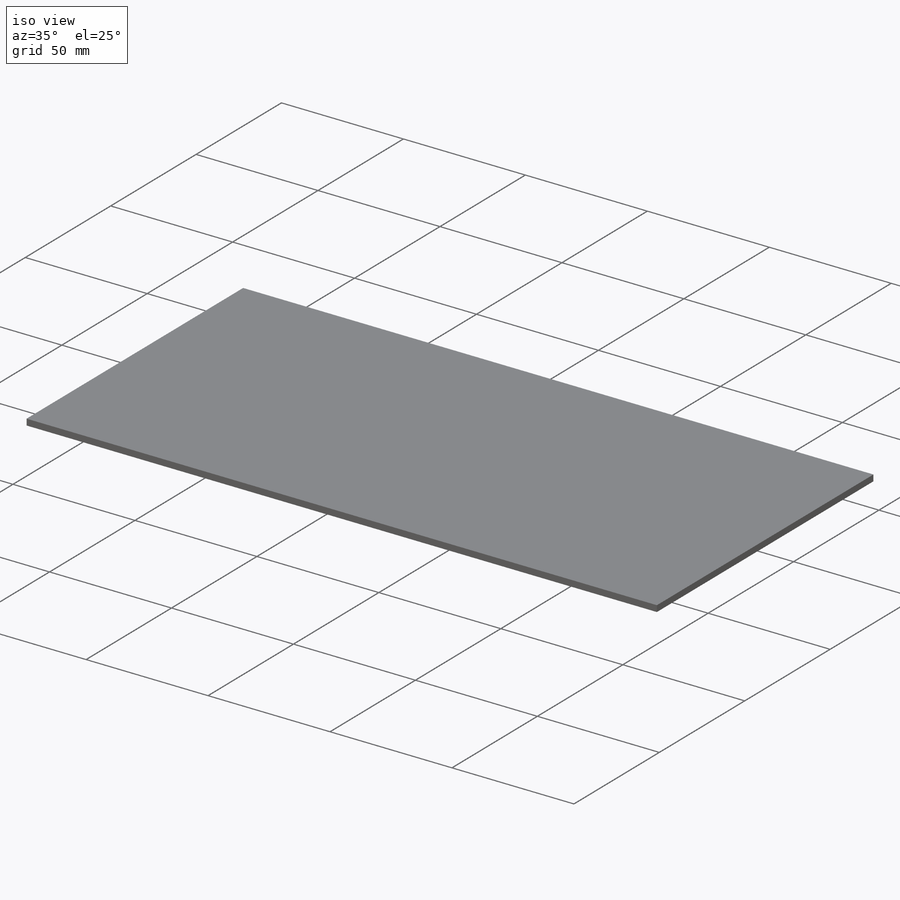
[diagram: iso view]
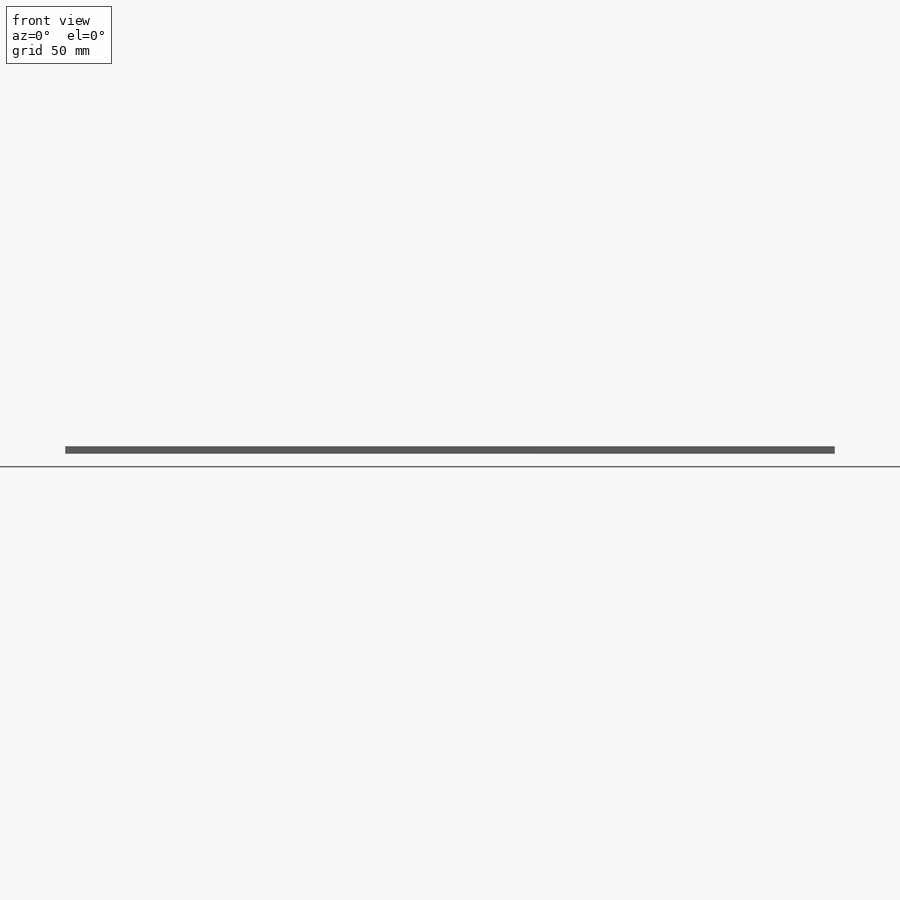
[diagram: front view]
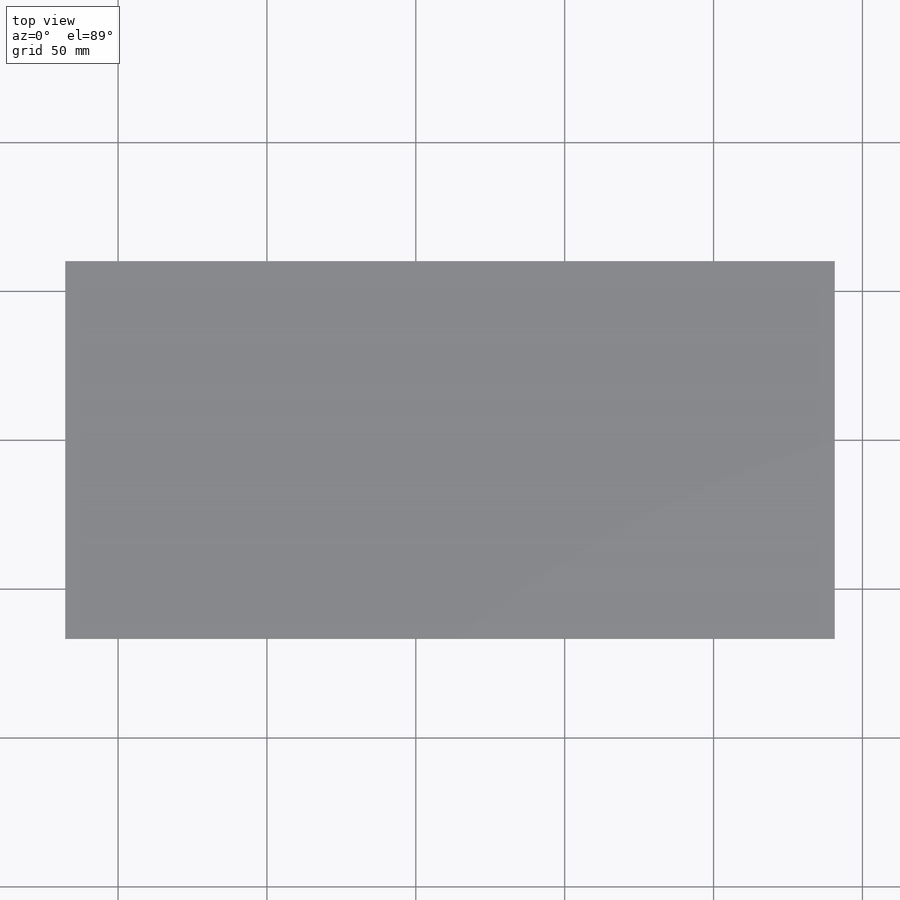
[diagram: top view]
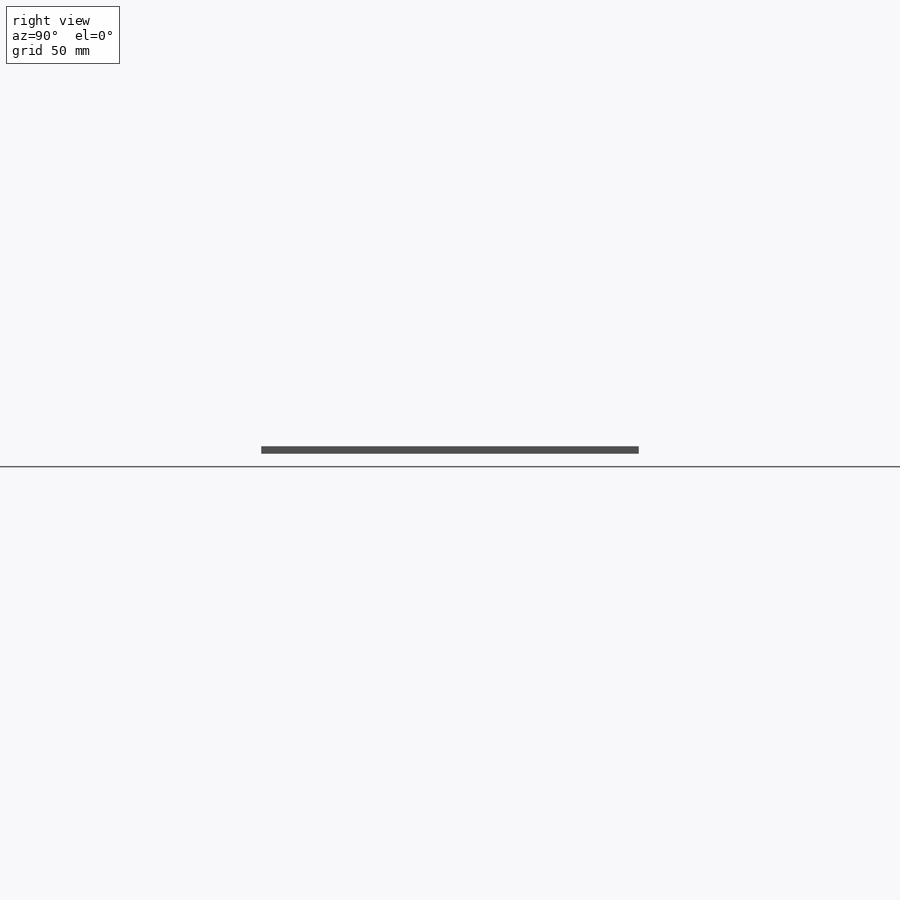
[diagram: right view]
SOLIDWORKS PART (.sldprt)
format: sldprt  version: not decoded by parser v0  size: 161,280 bytes
history: native  units: mm
features: sketch x5, hole x2, material x1, extrude x1 (+16 scaffold rows collapsed)
feature tree (25):
  scaffold x16  (default folders/planes/origin — collapsed)
  material  "Material <not specified>"
  sketch  "Sketch1"
  extrude  "Boss-Extrude1"  Depth=2.54mm
  hole  "Ø3.0 (3) Diameter Hole1"  Diameter=3mm Depth=25.4mm
  sketch  "Sketch3"  dims[D1=0.0mm D2=0.0mm]
  sketch  "Sketch2"  dims[hole-wizard template sketch: 47 standard entries collapsed; hole parameters kept: c15.Hole Depth=25.4mm c15.D3=~14.816244mm c15.Drill Angle=118.0deg]
  hole  "Ø3.0 (3) Diameter Hole2"  Diameter=3mm Depth=25.4mm
  sketch  "Sketch7"  dims[D1=0.0mm]
  sketch  "Sketch6"  dims[hole-wizard template sketch: 47 standard entries collapsed; hole parameters kept: c15.Hole Depth=25.4mm c15.D3=~14.816244mm c15.Drill Angle=118.0deg]
decode coverage: 7 of 8 modeling features carry decoded parameters
note: ~ marks probable driven/reference dimensions
note: suppression state not decoded; provenance and decode notes live in map.json
